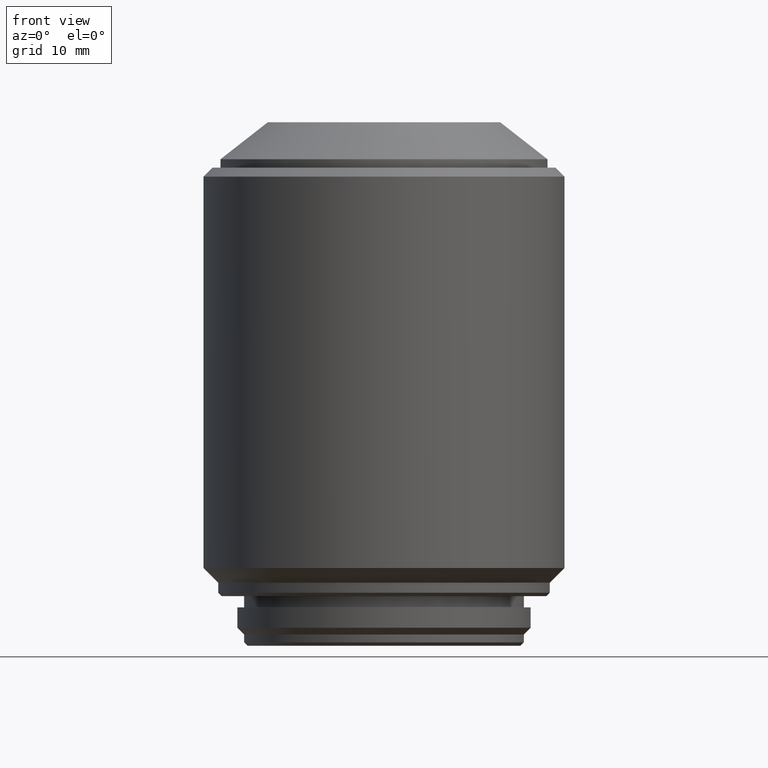
[diagram: clean part render]
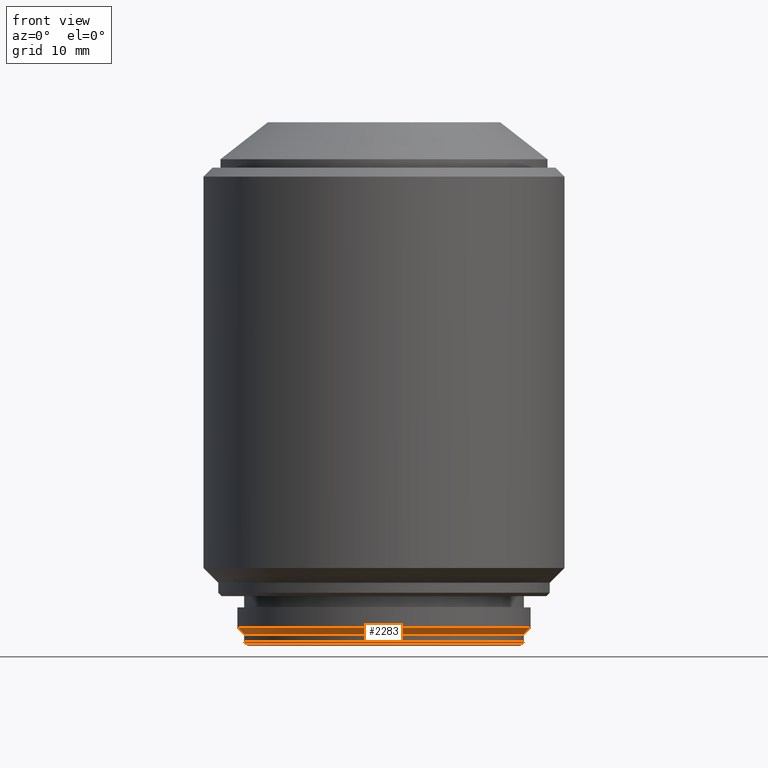
[diagram: same view with one face highlighted and labeled with its STEP entity id]
A machine part, front view. The second image highlights one B-rep face of the part: STEP entity #2283.
In plain terms, the highlighted conical surface has half-angle 45 deg.
Its self-contained STEP definition (entity closure, byte-faithful):
#1845 = DIRECTION ( 'NONE',  ( 0.7071067811865470176, 0.000000000000000000, 0.7071067811865480168 ) ) ;
#2028 = ORIENTED_EDGE ( 'NONE', *, *, #14585, .T. ) ;
#2283 = ADVANCED_FACE ( 'NONE', ( #6501 ), #4695, .T. ) ;
#3052 = DIRECTION ( 'NONE',  ( -1.000000000000000000, 0.000000000000000000, 0.000000000000000000 ) ) ;
#3512 = CIRCLE ( 'NONE', #18012, 12.40000000000000036 ) ;
#4695 = CONICAL_SURFACE ( 'NONE', #22491, 13.00000000000000000, 0.7853981633974476129 ) ;
#5864 = VERTEX_POINT ( 'NONE', #12023 ) ;
#6501 = FACE_OUTER_BOUND ( 'NONE', #18146, .T. ) ;
#6512 = EDGE_CURVE ( 'NONE', #5864, #12772, #13339, .T. ) ;
#7123 = VERTEX_POINT ( 'NONE', #10387 ) ;
#8184 = LINE ( 'NONE', #11686, #10138 ) ;
#8847 = VERTEX_POINT ( 'NONE', #11913 ) ;
#9073 = CARTESIAN_POINT ( 'NONE',  ( -13.00000000000000000, 1.592040838891559095E-15, 1.600000000000000089 ) ) ;
#10087 = DIRECTION ( 'NONE',  ( 0.000000000000000000, 0.000000000000000000, -1.000000000000000000 ) ) ;
#10130 = CIRCLE ( 'NONE', #20488, 13.00000000000000000 ) ;
#10138 = VECTOR ( 'NONE', #1845, 1000.000000000000000 ) ;
#10387 = CARTESIAN_POINT ( 'NONE',  ( 13.00000000000000000, 0.000000000000000000, 1.600000000000000089 ) ) ;
#10870 = VECTOR ( 'NONE', #23181, 1000.000000000000000 ) ;
#11417 = CARTESIAN_POINT ( 'NONE',  ( -13.00000000000000000, 1.592040838891559095E-15, 1.600000000000000089 ) ) ;
#11686 = CARTESIAN_POINT ( 'NONE',  ( 13.00000000000000000, 0.000000000000000000, 1.600000000000000089 ) ) ;
#11913 = CARTESIAN_POINT ( 'NONE',  ( 12.40000000000000036, 0.000000000000000000, 1.000000000000000000 ) ) ;
#12023 = CARTESIAN_POINT ( 'NONE',  ( -12.40000000000000036, 1.555301434917138433E-15, 1.000000000000000000 ) ) ;
#12772 = VERTEX_POINT ( 'NONE', #11417 ) ;
#12897 = CARTESIAN_POINT ( 'NONE',  ( 0.000000000000000000, 0.000000000000000000, 1.600000000000000089 ) ) ;
#13339 = LINE ( 'NONE', #9073, #10870 ) ;
#14585 = EDGE_CURVE ( 'NONE', #8847, #7123, #8184, .T. ) ;
#15390 = EDGE_CURVE ( 'NONE', #8847, #5864, #3512, .T. ) ;
#15415 = CARTESIAN_POINT ( 'NONE',  ( 0.000000000000000000, 0.000000000000000000, 1.000000000000000000 ) ) ;
#15790 = ORIENTED_EDGE ( 'NONE', *, *, #6512, .F. ) ;
#16093 = CARTESIAN_POINT ( 'NONE',  ( 0.000000000000000000, 0.000000000000000000, 1.600000000000000089 ) ) ;
#16224 = DIRECTION ( 'NONE',  ( 0.000000000000000000, 0.000000000000000000, 1.000000000000000000 ) ) ;
#17774 = ORIENTED_EDGE ( 'NONE', *, *, #22147, .F. ) ;
#18012 = AXIS2_PLACEMENT_3D ( 'NONE', #15415, #10087, #19434 ) ;
#18146 = EDGE_LOOP ( 'NONE', ( #15790, #23945, #2028, #17774 ) ) ;
#18427 = DIRECTION ( 'NONE',  ( 1.000000000000000000, 0.000000000000000000, 0.000000000000000000 ) ) ;
#19434 = DIRECTION ( 'NONE',  ( -1.000000000000000000, 0.000000000000000000, 0.000000000000000000 ) ) ;
#20488 = AXIS2_PLACEMENT_3D ( 'NONE', #12897, #20810, #3052 ) ;
#20810 = DIRECTION ( 'NONE',  ( 0.000000000000000000, 0.000000000000000000, 1.000000000000000000 ) ) ;
#22147 = EDGE_CURVE ( 'NONE', #12772, #7123, #10130, .T. ) ;
#22491 = AXIS2_PLACEMENT_3D ( 'NONE', #16093, #16224, #18427 ) ;
#23181 = DIRECTION ( 'NONE',  ( -0.7071067811865470176, 8.659560562354926695E-17, 0.7071067811865480168 ) ) ;
#23945 = ORIENTED_EDGE ( 'NONE', *, *, #15390, .F. ) ;